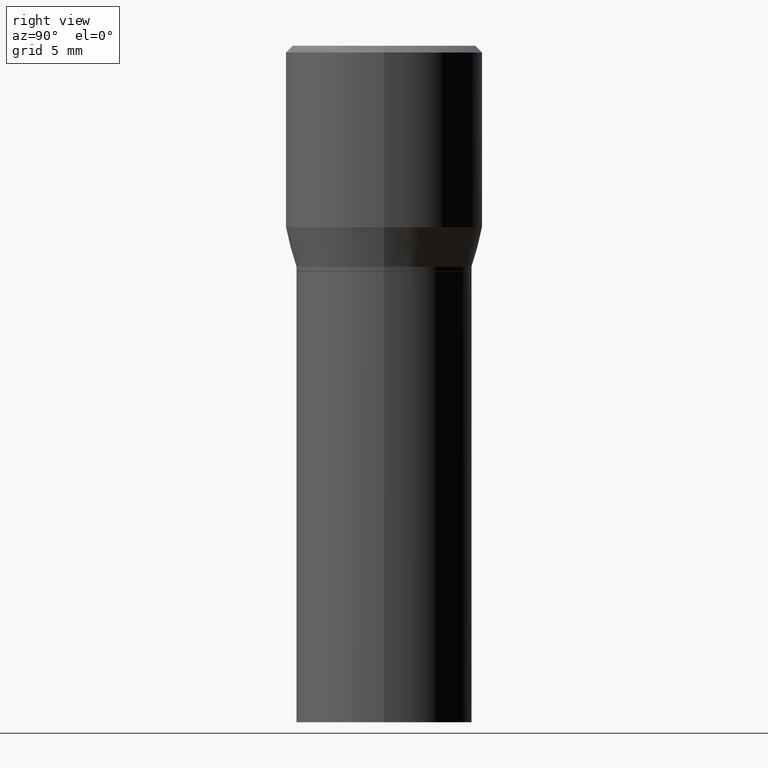
[diagram: clean part render]
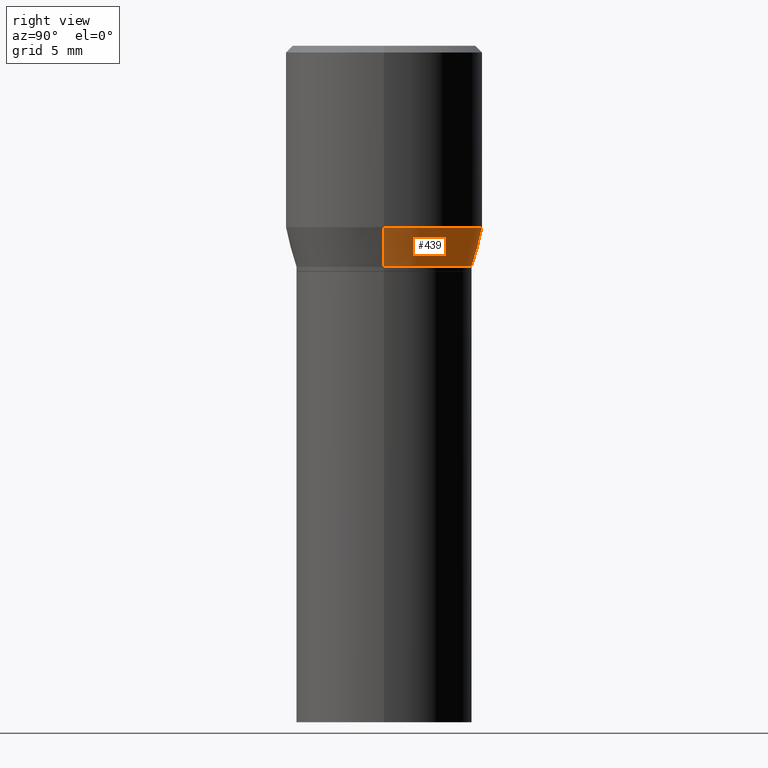
[diagram: same view with one face highlighted and labeled with its STEP entity id]
A machine part, right view. The second image highlights one B-rep face of the part: STEP entity #439.
In plain terms, the highlighted conical surface has half-angle 15 deg.
Its self-contained STEP definition (entity closure, byte-faithful):
#10 = DIRECTION ( 'NONE',  ( -2.445468806185136597E-29, 3.491481338843145583E-15, 1.000000000000000000 ) ) ;
#11 = CARTESIAN_POINT ( 'NONE',  ( -0.1952999999999999736, -3.231358930936662090E-16, -0.4900000000000001021 ) ) ;
#32 = VERTEX_POINT ( 'NONE', #465 ) ;
#68 = FACE_OUTER_BOUND ( 'NONE', #121, .T. ) ;
#76 = VERTEX_POINT ( 'NONE', #367 ) ;
#110 = VECTOR ( 'NONE', #348, 39.37007874015747433 ) ;
#112 = ORIENTED_EDGE ( 'NONE', *, *, #311, .T. ) ;
#118 = CONICAL_SURFACE ( 'NONE', #463, 0.1952999999999999736, 0.2617993877991501295 ) ;
#119 = VERTEX_POINT ( 'NONE', #383 ) ;
#121 = EDGE_LOOP ( 'NONE', ( #413, #112, #341, #221 ) ) ;
#138 = AXIS2_PLACEMENT_3D ( 'NONE', #294, #323, #258 ) ;
#165 = LINE ( 'NONE', #410, #205 ) ;
#171 = EDGE_CURVE ( 'NONE', #119, #32, #198, .T. ) ;
#198 = CIRCLE ( 'NONE', #425, 0.1952999999999999736 ) ;
#205 = VECTOR ( 'NONE', #306, 39.37007874015747433 ) ;
#221 = ORIENTED_EDGE ( 'NONE', *, *, #377, .F. ) ;
#232 = EDGE_CURVE ( 'NONE', #402, #76, #457, .T. ) ;
#248 = CARTESIAN_POINT ( 'NONE',  ( 1.198279715030717173E-29, -1.710825856033141537E-15, -0.4900000000000001021 ) ) ;
#258 = DIRECTION ( 'NONE',  ( 1.000000000000000000, -6.982962677686266711E-15, 0.000000000000000000 ) ) ;
#265 = LINE ( 'NONE', #11, #110 ) ;
#268 = CARTESIAN_POINT ( 'NONE',  ( 1.198279715030717173E-29, -1.710825856033141537E-15, -0.4900000000000001021 ) ) ;
#294 = CARTESIAN_POINT ( 'NONE',  ( 9.842606206466859638E-30, -1.405263310189985589E-15, -0.4024834085625100810 ) ) ;
#299 = DIRECTION ( 'NONE',  ( 1.000000000000000000, -6.982962677686265922E-15, 0.000000000000000000 ) ) ;
#306 = DIRECTION ( 'NONE',  ( 0.2588190451025214611, 1.565188264969621573E-15, 0.9659258262890682012 ) ) ;
#311 = EDGE_CURVE ( 'NONE', #32, #76, #265, .T. ) ;
#323 = DIRECTION ( 'NONE',  ( -2.445468806185136597E-29, 3.491481338843145583E-15, 1.000000000000000000 ) ) ;
#341 = ORIENTED_EDGE ( 'NONE', *, *, #232, .F. ) ;
#348 = DIRECTION ( 'NONE',  ( -0.2588190451025214611, 5.211531920934551042E-15, 0.9659258262890682012 ) ) ;
#355 = DIRECTION ( 'NONE',  ( 1.000000000000000000, -6.982962677686265922E-15, 0.000000000000000000 ) ) ;
#361 = DIRECTION ( 'NONE',  ( -2.445468806185136597E-29, 3.491481338843145583E-15, 1.000000000000000000 ) ) ;
#367 = CARTESIAN_POINT ( 'NONE',  ( -0.2187500000000000000, 1.490489242852337896E-16, -0.4024834085625100810 ) ) ;
#377 = EDGE_CURVE ( 'NONE', #119, #402, #165, .T. ) ;
#383 = CARTESIAN_POINT ( 'NONE',  ( 0.1952999999999999736, -3.074598466985269231E-15, -0.4900000000000001021 ) ) ;
#402 = VERTEX_POINT ( 'NONE', #409 ) ;
#409 = CARTESIAN_POINT ( 'NONE',  ( 0.2187500000000000000, -2.932786395933856235E-15, -0.4024834085625100810 ) ) ;
#410 = CARTESIAN_POINT ( 'NONE',  ( 0.1952999999999999736, -3.074598466985269231E-15, -0.4900000000000001021 ) ) ;
#413 = ORIENTED_EDGE ( 'NONE', *, *, #171, .T. ) ;
#425 = AXIS2_PLACEMENT_3D ( 'NONE', #268, #10, #299 ) ;
#439 = ADVANCED_FACE ( 'NONE', ( #68 ), #118, .T. ) ;
#457 = CIRCLE ( 'NONE', #138, 0.2187500000000000000 ) ;
#463 = AXIS2_PLACEMENT_3D ( 'NONE', #248, #361, #355 ) ;
#465 = CARTESIAN_POINT ( 'NONE',  ( -0.1952999999999999736, -8.704348440421619739E-17, -0.4900000000000001021 ) ) ;